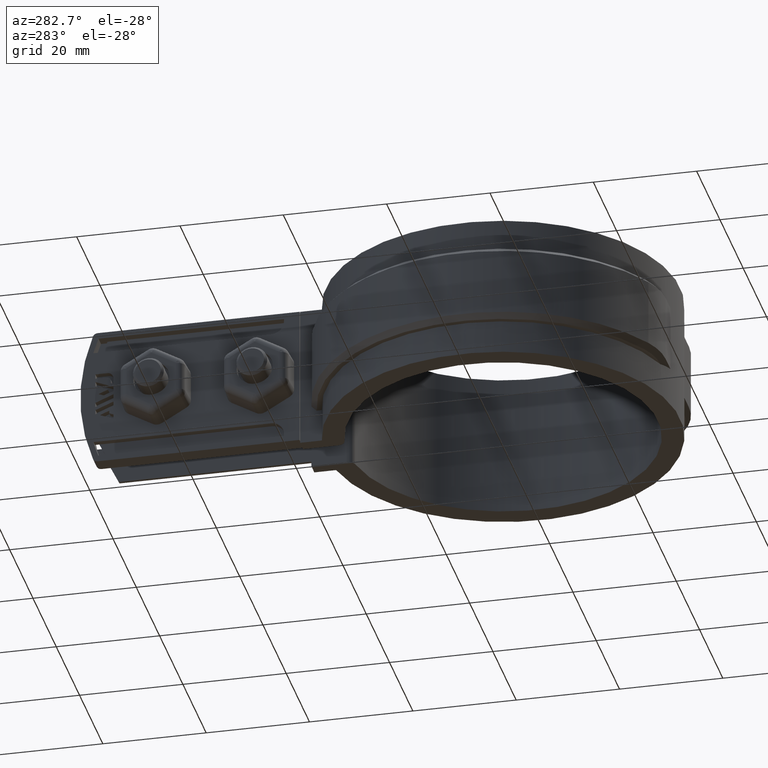
[diagram: clean part render]
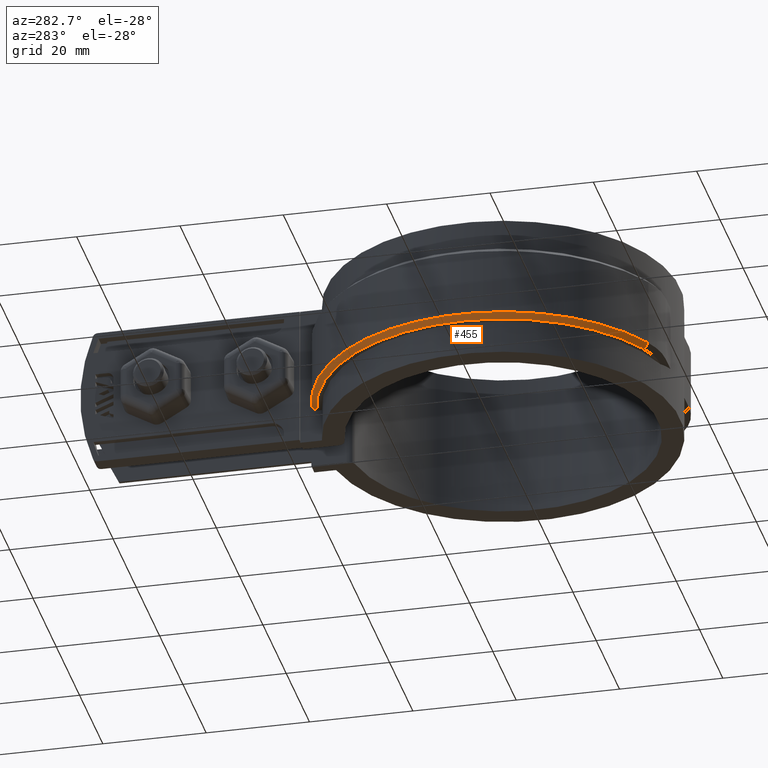
[diagram: same view with one face highlighted and labeled with its STEP entity id]
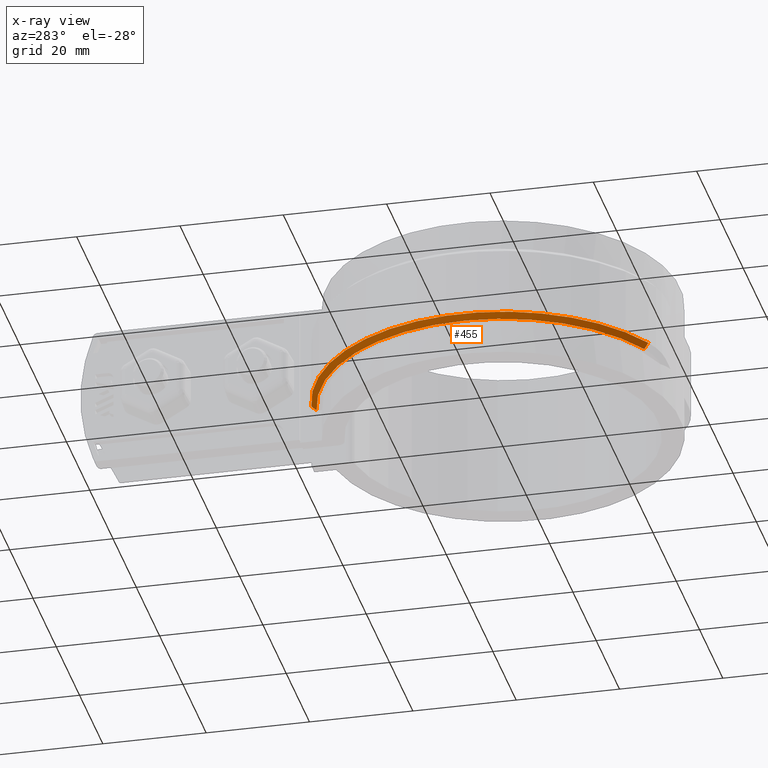
[diagram: x-ray of the same camera — body ghosted, the highlighted face saturated]
A machine part, auxiliary view. The second image highlights one B-rep face of the part: STEP entity #455.
The next image is the same camera in x-ray: the body ghosted, the highlighted face saturated — about 0% of this face is hidden behind the body in this view.
In plain terms, the highlighted conical surface has half-angle 45 deg.
Its self-contained STEP definition (entity closure, byte-faithful):
#455 = ADVANCED_FACE( '', ( #921 ), #922, .T. );
#921 = FACE_OUTER_BOUND( '', #2029, .T. );
#922 = CONICAL_SURFACE( '', #2030, 36.2450000000000, 0.785398163397448 );
#2029 = EDGE_LOOP( '', ( #4571, #4572, #4573, #4574 ) );
#2030 = AXIS2_PLACEMENT_3D( '', #4575, #4576, #4577 );
#4571 = ORIENTED_EDGE( '', *, *, #6957, .F. );
#4572 = ORIENTED_EDGE( '', *, *, #7131, .F. );
#4573 = ORIENTED_EDGE( '', *, *, #7124, .F. );
#4574 = ORIENTED_EDGE( '', *, *, #7132, .F. );
#4575 = CARTESIAN_POINT( '', ( 8.67361737988404E-016, 0.000000000000000, -19.0000000000000 ) );
#4576 = DIRECTION( '', ( 0.000000000000000, 0.000000000000000, 1.00000000000000 ) );
#4577 = DIRECTION( '', ( 1.00000000000000, 0.000000000000000, 0.000000000000000 ) );
#6957 = EDGE_CURVE( '', #8003, #8005, #8006, .T. );
#7124 = EDGE_CURVE( '', #8294, #8296, #8297, .T. );
#7131 = EDGE_CURVE( '', #8296, #8003, #8307, .T. );
#7132 = EDGE_CURVE( '', #8005, #8294, #8308, .F. );
#8003 = VERTEX_POINT( '', #10577 );
#8005 = VERTEX_POINT( '', #10580 );
#8006 = B_SPLINE_CURVE_WITH_KNOTS( '', 3, ( #10581, #10582, #10583, #10584 ), .UNSPECIFIED., .F., .F., ( 4, 4 ), ( 0.000000000000000, 0.00142478149816513 ), .UNSPECIFIED. );
#8294 = VERTEX_POINT( '', #11901 );
#8296 = VERTEX_POINT( '', #11903 );
#8297 = LINE( '', #11904, #11905 );
#8307 = CIRCLE( '', #11918, 35.2450000000000 );
#8308 = CIRCLE( '', #11919, 36.2450000000000 );
#10577 = CARTESIAN_POINT( '', ( -6.10000000000002, 34.7131102755141, -20.0000000000000 ) );
#10580 = CARTESIAN_POINT( '', ( -6.10000000000003, 35.7280005737797, -19.0000000000000 ) );
#10581 = CARTESIAN_POINT( '', ( -6.10000000000002, 34.7131102755141, -20.0000000000000 ) );
#10582 = CARTESIAN_POINT( '', ( -6.10000000000002, 35.0514779785923, -19.6667386752553 ) );
#10583 = CARTESIAN_POINT( '', ( -6.10000000000002, 35.3897727736946, -19.3334033117812 ) );
#10584 = CARTESIAN_POINT( '', ( -6.10000000000002, 35.7280005737797, -19.0000000000000 ) );
#11901 = CARTESIAN_POINT( '', ( -17.0871064701963, -31.9645243586726, -19.0000000000000 ) );
#11903 = CARTESIAN_POINT( '', ( -16.6156729905385, -31.0826227347611, -20.0000000000000 ) );
#11904 = CARTESIAN_POINT( '', ( -17.0871064701963, -31.9645243586726, -19.0000000000000 ) );
#11905 = VECTOR( '', #13816, 1000.00000000000 );
#11918 = AXIS2_PLACEMENT_3D( '', #13829, #13830, #13831 );
#11919 = AXIS2_PLACEMENT_3D( '', #13832, #13833, #13834 );
#13816 = DIRECTION( '', ( 0.333353810344388, 0.623598618607256, -0.707106781186547 ) );
#13829 = CARTESIAN_POINT( '', ( 8.67361737988404E-016, 0.000000000000000, -20.0000000000000 ) );
#13830 = DIRECTION( '', ( 0.000000000000000, 0.000000000000000, -1.00000000000000 ) );
#13831 = DIRECTION( '', ( -1.00000000000000, 0.000000000000000, 0.000000000000000 ) );
#13832 = CARTESIAN_POINT( '', ( 8.67361737988404E-016, 0.000000000000000, -19.0000000000000 ) );
#13833 = DIRECTION( '', ( 0.000000000000000, 0.000000000000000, -1.00000000000000 ) );
#13834 = DIRECTION( '', ( -1.00000000000000, 0.000000000000000, 0.000000000000000 ) );